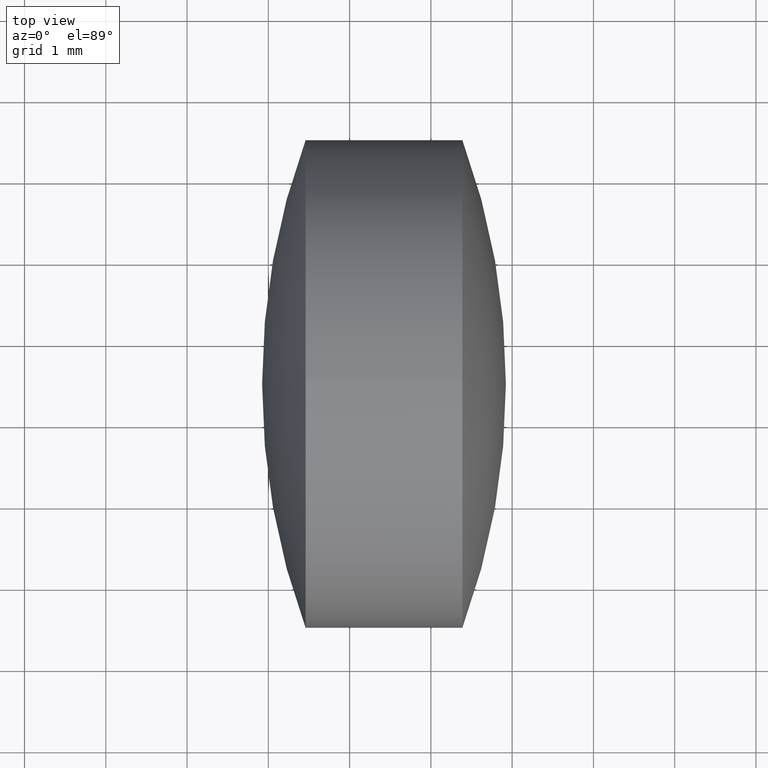
[diagram: clean part render]
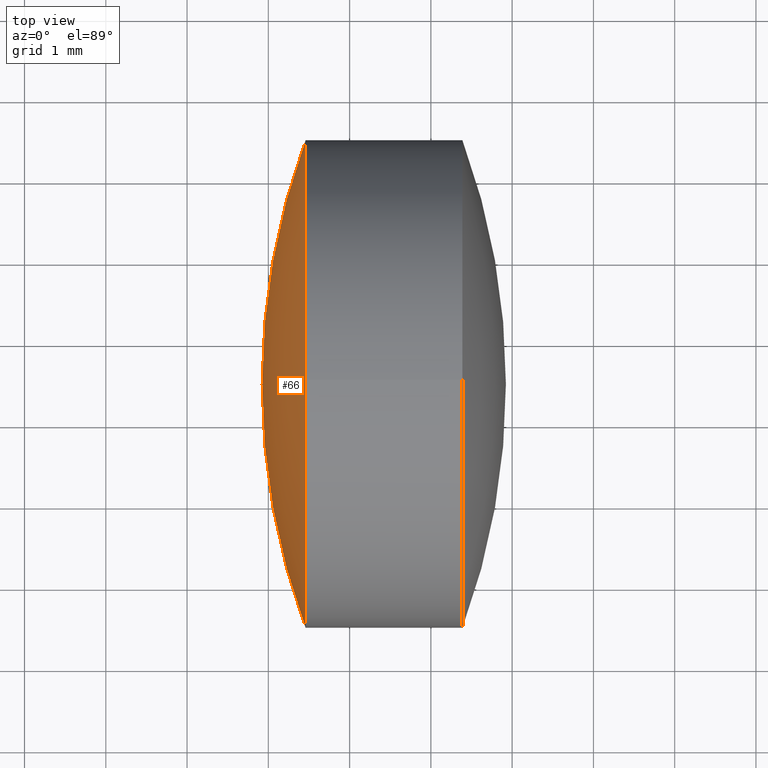
[diagram: same view with one face highlighted and labeled with its STEP entity id]
A machine part, top view. The second image highlights one B-rep face of the part: STEP entity #66.
In plain terms, the highlighted spherical surface has radius 8.6788 mm.
Its self-contained STEP definition (entity closure, byte-faithful):
#2 = VERTEX_POINT ( 'NONE', #328 ) ;
#20 = CARTESIAN_POINT ( 'NONE',  ( 19.45819823698440500, 11.48412118657908500, 2.999999999999997300 ) ) ;
#27 = CARTESIAN_POINT ( 'NONE',  ( 19.45819823698440500, 11.48412118657908500, 0.0000000000000000000 ) ) ;
#47 = CIRCLE ( 'NONE', #242, 2.999999999999997300 ) ;
#51 = AXIS2_PLACEMENT_3D ( 'NONE', #192, #244, #245 ) ;
#58 = DIRECTION ( 'NONE',  ( -1.000000000000000000, -0.0000000000000000000, -0.0000000000000000000 ) ) ;
#62 = FACE_OUTER_BOUND ( 'NONE', #147, .T. ) ;
#66 = ADVANCED_FACE ( 'NONE', ( #62 ), #287, .T. ) ;
#95 = CIRCLE ( 'NONE', #258, 8.678801936499811000 ) ;
#98 = VERTEX_POINT ( 'NONE', #263 ) ;
#105 = ORIENTED_EDGE ( 'NONE', *, *, #323, .T. ) ;
#115 = DIRECTION ( 'NONE',  ( -0.0000000000000000000, 0.0000000000000000000, 1.000000000000000000 ) ) ;
#147 = EDGE_LOOP ( 'NONE', ( #194, #239, #105, #305 ) ) ;
#172 = VERTEX_POINT ( 'NONE', #20 ) ;
#190 = AXIS2_PLACEMENT_3D ( 'NONE', #329, #234, #255 ) ;
#192 = CARTESIAN_POINT ( 'NONE',  ( 27.60200588776993100, 11.48412118657908100, 0.0000000000000000000 ) ) ;
#193 = DIRECTION ( 'NONE',  ( 0.0000000000000000000, 0.0000000000000000000, 1.000000000000000000 ) ) ;
#194 = ORIENTED_EDGE ( 'NONE', *, *, #298, .F. ) ;
#195 = CARTESIAN_POINT ( 'NONE',  ( 27.60200588776993100, 11.48412118657908100, 0.0000000000000000000 ) ) ;
#222 = DIRECTION ( 'NONE',  ( -1.000000000000000000, -0.0000000000000000000, -0.0000000000000000000 ) ) ;
#234 = DIRECTION ( 'NONE',  ( -0.0000000000000000000, 0.0000000000000000000, -1.000000000000000000 ) ) ;
#238 = CIRCLE ( 'NONE', #51, 8.678801936499811000 ) ;
#239 = ORIENTED_EDGE ( 'NONE', *, *, #282, .T. ) ;
#242 = AXIS2_PLACEMENT_3D ( 'NONE', #317, #58, #193 ) ;
#244 = DIRECTION ( 'NONE',  ( 0.0000000000000000000, 1.224646799147353200E-016, -1.000000000000000000 ) ) ;
#245 = DIRECTION ( 'NONE',  ( 0.0000000000000000000, 1.000000000000000000, 1.224646799147353000E-016 ) ) ;
#251 = AXIS2_PLACEMENT_3D ( 'NONE', #27, #222, #289 ) ;
#255 = DIRECTION ( 'NONE',  ( 0.0000000000000000000, 1.000000000000000000, 0.0000000000000000000 ) ) ;
#258 = AXIS2_PLACEMENT_3D ( 'NONE', #195, #115, #290 ) ;
#260 = VERTEX_POINT ( 'NONE', #336 ) ;
#263 = CARTESIAN_POINT ( 'NONE',  ( 19.45819823698440100, 14.48412118657908100, 0.0000000000000000000 ) ) ;
#282 = EDGE_CURVE ( 'NONE', #2, #172, #47, .T. ) ;
#287 = SPHERICAL_SURFACE ( 'NONE', #190, 8.678801936499809200 ) ;
#289 = DIRECTION ( 'NONE',  ( 0.0000000000000000000, 0.0000000000000000000, 1.000000000000000000 ) ) ;
#290 = DIRECTION ( 'NONE',  ( 1.000000000000000000, 0.0000000000000000000, 0.0000000000000000000 ) ) ;
#298 = EDGE_CURVE ( 'NONE', #2, #260, #238, .T. ) ;
#301 = CIRCLE ( 'NONE', #251, 2.999999999999997300 ) ;
#305 = ORIENTED_EDGE ( 'NONE', *, *, #338, .T. ) ;
#317 = CARTESIAN_POINT ( 'NONE',  ( 19.45819823698440500, 11.48412118657908500, 0.0000000000000000000 ) ) ;
#323 = EDGE_CURVE ( 'NONE', #172, #98, #301, .T. ) ;
#328 = CARTESIAN_POINT ( 'NONE',  ( 19.45819823698440100, 8.484121186579086400, -3.673940397442054400E-016 ) ) ;
#329 = CARTESIAN_POINT ( 'NONE',  ( 27.60200588776993100, 11.48412118657908100, 0.0000000000000000000 ) ) ;
#336 = CARTESIAN_POINT ( 'NONE',  ( 18.92320395127011800, 11.48412118657908100, 0.0000000000000000000 ) ) ;
#338 = EDGE_CURVE ( 'NONE', #98, #260, #95, .T. ) ;